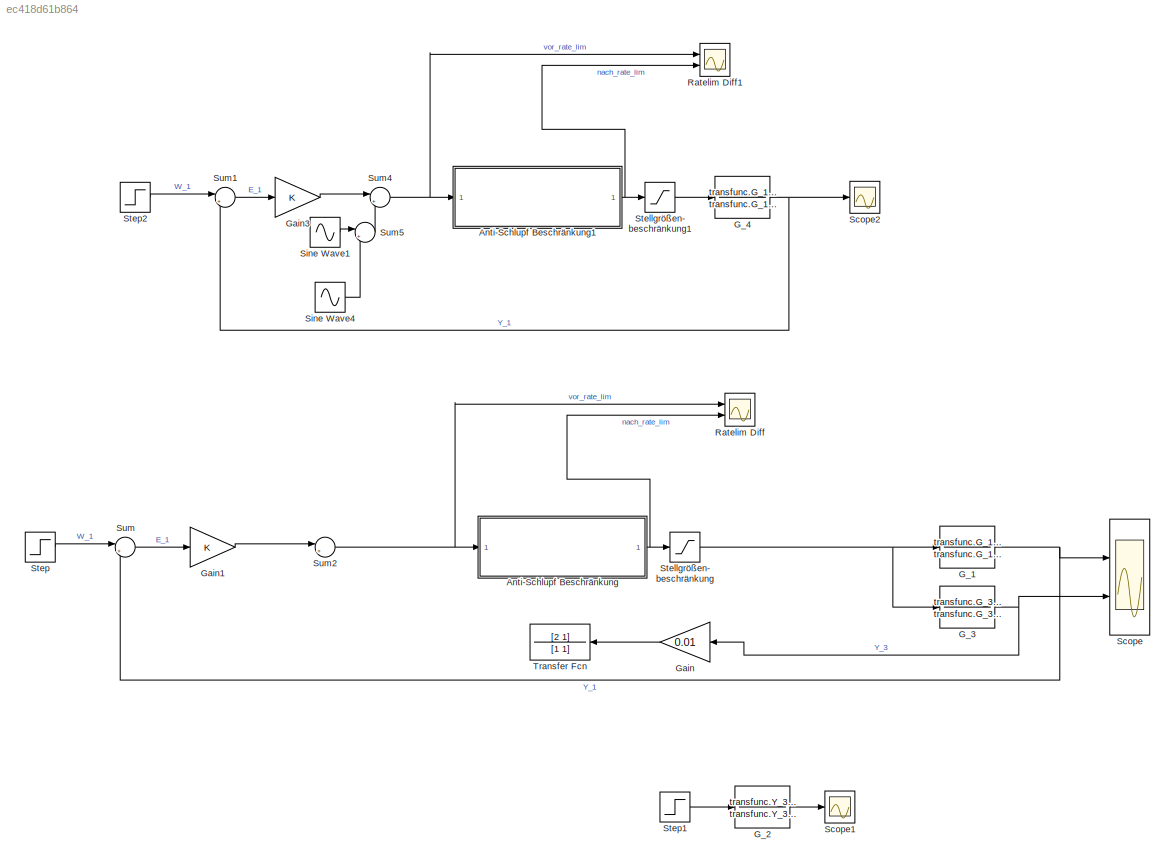
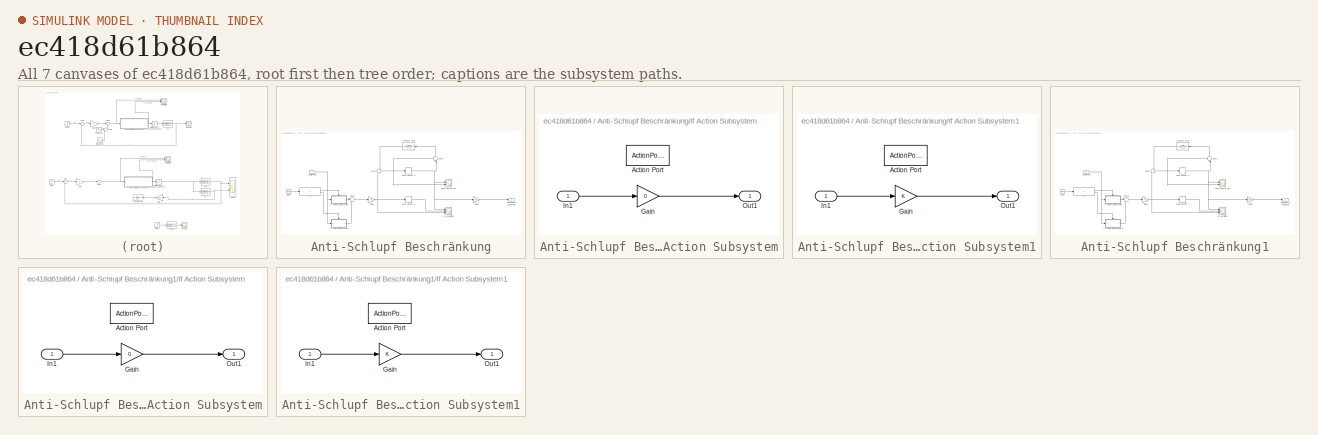
[diagram: thumbnail index - all 7 canvases of the model, root first then tree order]
MODEL slx_ec418d61b864
KIND model
CONFIG AbsTol = auto
CONFIG EnableMultiTasking = off
CONFIG FixedStep = 0.001
CONFIG MaxStep = auto
CONFIG MinStep = auto
CONFIG RelTol = 1e-3
CONFIG SampleTimeConstraint = Unconstrained
CONFIG Solver = FixedStepAuto
CONFIG SolverName = FixedStepAuto
CONFIG StartTime = 0.0
CONFIG StopTime = 20
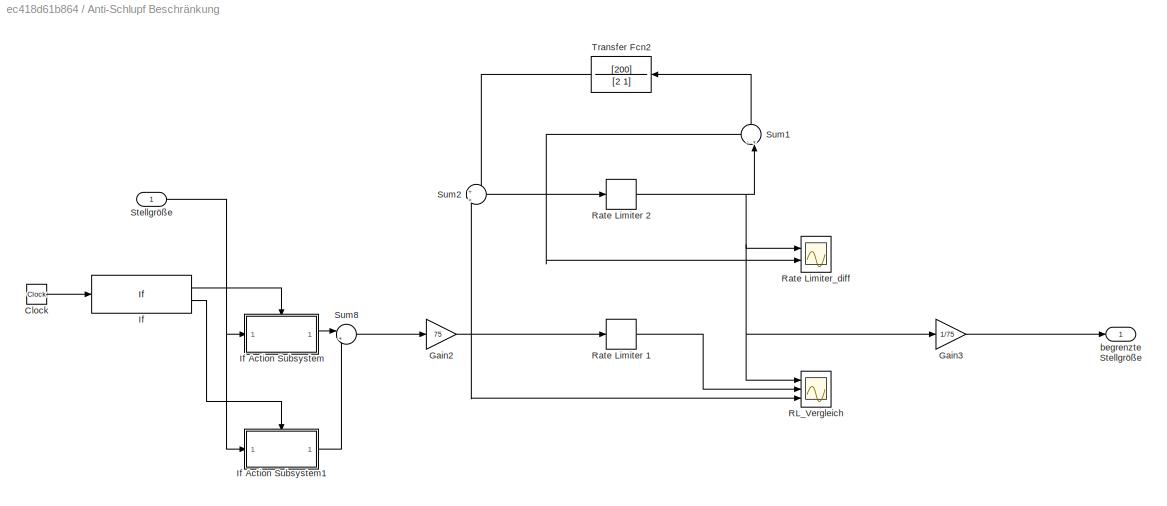
BLOCK [SubSystem] Anti-Schlupf Beschränkung
  Ports = [1, 1]
  RequestExecContextInheritance = off
  Variant = off
BLOCK [Clock] Anti-Schlupf Beschränkung/Clock
BLOCK [Gain] Anti-Schlupf Beschränkung/Gain2
  Gain = 75
  OutDataTypeStr = Inherit: Inherit via internal rule
  ParamDataTypeStr = Inherit: Inherit via internal rule
  SaturateOnIntegerOverflow = off
BLOCK [Gain] Anti-Schlupf Beschränkung/Gain3
  Gain = 1/75
  OutDataTypeStr = Inherit: Inherit via internal rule
  ParamDataTypeStr = Inherit: Inherit via internal rule
  SaturateOnIntegerOverflow = off
BLOCK [If] Anti-Schlupf Beschränkung/If
  IfExpression = u1 < 0.01
  Ports = [1, 2]
BLOCK [SubSystem] Anti-Schlupf Beschränkung/If Action Subsystem
  Ports = [1, 1, 0, 0, 0, 0, 0, 1]
  RequestExecContextInheritance = off
  TreatAsAtomicUnit = on
  Variant = off
BLOCK [ActionPort] Anti-Schlupf Beschränkung/If Action Subsystem/Action Port
  ActionType = then
BLOCK [Gain] Anti-Schlupf Beschränkung/If Action Subsystem/Gain
  Gain = 0
  OutDataTypeStr = Inherit: Inherit via internal rule
  ParamDataTypeStr = Inherit: Inherit via internal rule
  SaturateOnIntegerOverflow = off
BLOCK [Inport] Anti-Schlupf Beschränkung/If Action Subsystem/In1
  IconDisplay = Port number
BLOCK [Outport] Anti-Schlupf Beschränkung/If Action Subsystem/Out1
  IconDisplay = Port number
BLOCK [SubSystem] Anti-Schlupf Beschränkung/If Action Subsystem1
  Ports = [1, 1, 0, 0, 0, 0, 0, 1]
  RequestExecContextInheritance = off
  TreatAsAtomicUnit = on
  Variant = off
BLOCK [ActionPort] Anti-Schlupf Beschränkung/If Action Subsystem1/Action Port
  ActionType = else
BLOCK [Gain] Anti-Schlupf Beschränkung/If Action Subsystem1/Gain
  OutDataTypeStr = Inherit: Inherit via internal rule
  ParamDataTypeStr = Inherit: Inherit via internal rule
  SaturateOnIntegerOverflow = off
BLOCK [Inport] Anti-Schlupf Beschränkung/If Action Subsystem1/In1
  IconDisplay = Port number
BLOCK [Outport] Anti-Schlupf Beschränkung/If Action Subsystem1/Out1
  IconDisplay = Port number
BLOCK [Scope] Anti-Schlupf Beschränkung/RL_Vergleich
  NumInputPorts = 3
  Ports = [3]
  ScopeSpecificationString = Simulink.scopes.TimeScopeBlockCfg('CurrentConfiguration', extmgr.ConfigurationSet(extmgr.Configuration('Core','General UI',true),extmgr.Configuration('Core','Source UI',true),extmgr.Configuration('Sources','WiredSimulink',true,'DataLoggingVariableName','ScopeData2'),extmgr.Configuration('Visuals','Time Domain',true,'SerializedDisplays',{struct('MinYLimReal','-511.24002','MaxYLimReal','97.26882','Y...<+1489ch>
BLOCK [RateLimiter] Anti-Schlupf Beschränkung/Rate Limiter 1
  FallingSlewLimit = -9.57
  RisingSlewLimit = 9.57
  SampleTimeMode = inherited
BLOCK [RateLimiter] Anti-Schlupf Beschränkung/Rate Limiter 2
  FallingSlewLimit = -9.57
  RisingSlewLimit = 9.57
  SampleTimeMode = inherited
BLOCK [Scope] Anti-Schlupf Beschränkung/Rate Limiter_diff
  NumInputPorts = 2
  Ports = [2]
  ScopeSpecificationString = Simulink.scopes.TimeScopeBlockCfg('CurrentConfiguration', extmgr.ConfigurationSet(extmgr.Configuration('Core','General UI',true),extmgr.Configuration('Core','Source UI',true),extmgr.Configuration('Sources','WiredSimulink',true,'DataLoggingVariableName','ScopeData1'),extmgr.Configuration('Visuals','Time Domain',true,'SerializedDisplays',{struct('MinYLimReal','-24.99839','MaxYLimReal','29.44327','YL...<+1434ch>
BLOCK [Inport] Anti-Schlupf Beschränkung/Stellgröße
  IconDisplay = Port number
BLOCK [Sum] Anti-Schlupf Beschränkung/Sum1
  IconShape = round
  InputSameDT = off
  Inputs = -+|
  OutDataTypeStr = Inherit: Inherit via internal rule
  Ports = [2, 1]
  SaturateOnIntegerOverflow = off
BLOCK [Sum] Anti-Schlupf Beschränkung/Sum2
  IconShape = round
  InputSameDT = off
  Inputs = +|+
  OutDataTypeStr = Inherit: Inherit via internal rule
  Ports = [2, 1]
  SaturateOnIntegerOverflow = off
BLOCK [Sum] Anti-Schlupf Beschränkung/Sum8
  IconShape = round
  InputSameDT = off
  Inputs = |++
  OutDataTypeStr = Inherit: Inherit via internal rule
  Ports = [2, 1]
  SaturateOnIntegerOverflow = off
BLOCK [TransferFcn] Anti-Schlupf Beschränkung/Transfer Fcn2
  Denominator = [2 1]
  Numerator = [200]
BLOCK [Outport] Anti-Schlupf Beschränkung/begrenzte Stellgröße
  IconDisplay = Port number
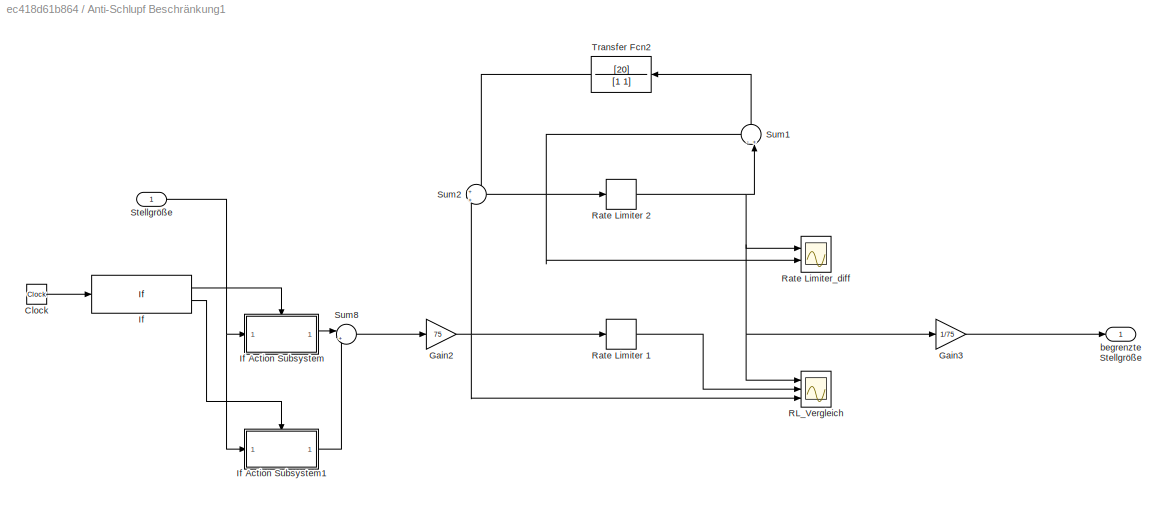
BLOCK [SubSystem] Anti-Schlupf Beschränkung1
  Commented = on
  Ports = [1, 1]
  RequestExecContextInheritance = off
  Variant = off
BLOCK [Clock] Anti-Schlupf Beschränkung1/Clock
BLOCK [Gain] Anti-Schlupf Beschränkung1/Gain2
  Gain = 75
  OutDataTypeStr = Inherit: Inherit via internal rule
  ParamDataTypeStr = Inherit: Inherit via internal rule
  SaturateOnIntegerOverflow = off
BLOCK [Gain] Anti-Schlupf Beschränkung1/Gain3
  Gain = 1/75
  OutDataTypeStr = Inherit: Inherit via internal rule
  ParamDataTypeStr = Inherit: Inherit via internal rule
  SaturateOnIntegerOverflow = off
BLOCK [If] Anti-Schlupf Beschränkung1/If
  IfExpression = u1 < 0.01
  Ports = [1, 2]
BLOCK [SubSystem] Anti-Schlupf Beschränkung1/If Action Subsystem
  Ports = [1, 1, 0, 0, 0, 0, 0, 1]
  RequestExecContextInheritance = off
  TreatAsAtomicUnit = on
  Variant = off
BLOCK [ActionPort] Anti-Schlupf Beschränkung1/If Action Subsystem/Action Port
  ActionType = then
BLOCK [Gain] Anti-Schlupf Beschränkung1/If Action Subsystem/Gain
  Gain = 0
  OutDataTypeStr = Inherit: Inherit via internal rule
  ParamDataTypeStr = Inherit: Inherit via internal rule
  SaturateOnIntegerOverflow = off
BLOCK [Inport] Anti-Schlupf Beschränkung1/If Action Subsystem/In1
  IconDisplay = Port number
BLOCK [Outport] Anti-Schlupf Beschränkung1/If Action Subsystem/Out1
  IconDisplay = Port number
BLOCK [SubSystem] Anti-Schlupf Beschränkung1/If Action Subsystem1
  Ports = [1, 1, 0, 0, 0, 0, 0, 1]
  RequestExecContextInheritance = off
  TreatAsAtomicUnit = on
  Variant = off
BLOCK [ActionPort] Anti-Schlupf Beschränkung1/If Action Subsystem1/Action Port
  ActionType = else
BLOCK [Gain] Anti-Schlupf Beschränkung1/If Action Subsystem1/Gain
  OutDataTypeStr = Inherit: Inherit via internal rule
  ParamDataTypeStr = Inherit: Inherit via internal rule
  SaturateOnIntegerOverflow = off
BLOCK [Inport] Anti-Schlupf Beschränkung1/If Action Subsystem1/In1
  IconDisplay = Port number
BLOCK [Outport] Anti-Schlupf Beschränkung1/If Action Subsystem1/Out1
  IconDisplay = Port number
BLOCK [Scope] Anti-Schlupf Beschränkung1/RL_Vergleich
  NumInputPorts = 3
  Ports = [3]
  ScopeSpecificationString = Simulink.scopes.TimeScopeBlockCfg('CurrentConfiguration', extmgr.ConfigurationSet(extmgr.Configuration('Core','General UI',true),extmgr.Configuration('Core','Source UI',true),extmgr.Configuration('Sources','WiredSimulink',true,'DataLoggingVariableName','ScopeData2'),extmgr.Configuration('Visuals','Time Domain',true,'SerializedDisplays',{struct('MinYLimReal','-511.24002','MaxYLimReal','97.26882','Y...<+1489ch>
BLOCK [RateLimiter] Anti-Schlupf Beschränkung1/Rate Limiter 1
  FallingSlewLimit = -9.57
  RisingSlewLimit = 9.57
  SampleTimeMode = inherited
BLOCK [RateLimiter] Anti-Schlupf Beschränkung1/Rate Limiter 2
  FallingSlewLimit = -9.57
  RisingSlewLimit = 9.57
  SampleTimeMode = inherited
BLOCK [Scope] Anti-Schlupf Beschränkung1/Rate Limiter_diff
  NumInputPorts = 2
  Ports = [2]
  ScopeSpecificationString = Simulink.scopes.TimeScopeBlockCfg('CurrentConfiguration', extmgr.ConfigurationSet(extmgr.Configuration('Core','General UI',true),extmgr.Configuration('Core','Source UI',true),extmgr.Configuration('Sources','WiredSimulink',true,'DataLoggingVariableName','ScopeData1'),extmgr.Configuration('Visuals','Time Domain',true,'SerializedDisplays',{struct('MinYLimReal','-24.99839','MaxYLimReal','29.44327','YL...<+1434ch>
BLOCK [Inport] Anti-Schlupf Beschränkung1/Stellgröße
  IconDisplay = Port number
BLOCK [Sum] Anti-Schlupf Beschränkung1/Sum1
  IconShape = round
  InputSameDT = off
  Inputs = -+|
  OutDataTypeStr = Inherit: Inherit via internal rule
  Ports = [2, 1]
  SaturateOnIntegerOverflow = off
BLOCK [Sum] Anti-Schlupf Beschränkung1/Sum2
  IconShape = round
  InputSameDT = off
  Inputs = +|+
  OutDataTypeStr = Inherit: Inherit via internal rule
  Ports = [2, 1]
  SaturateOnIntegerOverflow = off
BLOCK [Sum] Anti-Schlupf Beschränkung1/Sum8
  IconShape = round
  InputSameDT = off
  Inputs = |++
  OutDataTypeStr = Inherit: Inherit via internal rule
  Ports = [2, 1]
  SaturateOnIntegerOverflow = off
BLOCK [TransferFcn] Anti-Schlupf Beschränkung1/Transfer Fcn2
  Denominator = [1 1]
  Numerator = [20]
BLOCK [Outport] Anti-Schlupf Beschränkung1/begrenzte Stellgröße
  IconDisplay = Port number
BLOCK [TransferFcn] G_1
  Denominator = transfunc.G_1_denom
  Numerator = transfunc.G_1_numer
BLOCK [TransferFcn] G_2
  Commented = on
  Denominator = transfunc.Y_3_denom
  Numerator = transfunc.Y_3_numer
BLOCK [TransferFcn] G_3
  Denominator = transfunc.G_3_denom
  Numerator = transfunc.G_3_numer
BLOCK [TransferFcn] G_4
  Commented = on
  Denominator = transfunc.G_1_denom
  Numerator = transfunc.G_1_numer
BLOCK [Gain] Gain
  Gain = 0.01
  OutDataTypeStr = Inherit: Inherit via internal rule
  ParamDataTypeStr = Inherit: Inherit via internal rule
  SaturateOnIntegerOverflow = off
BLOCK [Gain] Gain1
  OutDataTypeStr = Inherit: Inherit via internal rule
  ParamDataTypeStr = Inherit: Inherit via internal rule
  SaturateOnIntegerOverflow = off
BLOCK [Gain] Gain3
  Commented = on
  OutDataTypeStr = Inherit: Inherit via internal rule
  ParamDataTypeStr = Inherit: Inherit via internal rule
  SaturateOnIntegerOverflow = off
BLOCK [Scope] Ratelim Diff
  NumInputPorts = 2
  Ports = [2]
  ScopeSpecificationString = Simulink.scopes.TimeScopeBlockCfg('CurrentConfiguration', extmgr.ConfigurationSet(extmgr.Configuration('Core','General UI',true),extmgr.Configuration('Core','Source UI',true),extmgr.Configuration('Sources','WiredSimulink',true,'DataLoggingVariableName','ScopeData1'),extmgr.Configuration('Visuals','Time Domain',true,'SerializedDisplays',{struct('MinYLimReal','-0.43901','MaxYLimReal','1.53592','YLab...<+1458ch>
BLOCK [Scope] Ratelim Diff1
  Commented = on
  NumInputPorts = 2
  Ports = [2]
  ScopeSpecificationString = Simulink.scopes.TimeScopeBlockCfg('CurrentConfiguration', extmgr.ConfigurationSet(extmgr.Configuration('Core','General UI',true),extmgr.Configuration('Core','Source UI',true),extmgr.Configuration('Sources','WiredSimulink',true,'DataLoggingVariableName','ScopeData2'),extmgr.Configuration('Visuals','Time Domain',true,'SerializedDisplays',{struct('MinYLimReal','-0.43901','MaxYLimReal','1.53592','YLab...<+1458ch>
BLOCK [Scope] Scope
  NumInputPorts = 2
  Ports = [2]
  ScopeSpecificationString = Simulink.scopes.TimeScopeBlockCfg('CurrentConfiguration', extmgr.ConfigurationSet(extmgr.Configuration('Core','General UI',true),extmgr.Configuration('Core','Source UI',true),extmgr.Configuration('Sources','WiredSimulink',true),extmgr.Configuration('Visuals','Time Domain',true,'SerializedDisplays',{struct('MinYLimReal','-0.2423','MaxYLimReal','2.18069','YLabelReal','','MinYLimMag','0.00000','MaxYL...<+2036ch>
BLOCK [Scope] Scope1
  Commented = on
  NumInputPorts = 1
  Ports = [1]
  ScopeSpecificationString = Simulink.scopes.TimeScopeBlockCfg('CurrentConfiguration', extmgr.ConfigurationSet(extmgr.Configuration('Core','General UI',true),extmgr.Configuration('Core','Source UI',true),extmgr.Configuration('Sources','WiredSimulink',true,'DataLoggingVariableName','ScopeData1'),extmgr.Configuration('Visuals','Time Domain',true,'SerializedDisplays',{struct('MinYLimReal','-13.76851','MaxYLimReal','13.76049','YL...<+1441ch>
BLOCK [Scope] Scope2
  Commented = on
  NumInputPorts = 1
  Ports = [1]
  ScopeSpecificationString = Simulink.scopes.TimeScopeBlockCfg('CurrentConfiguration', extmgr.ConfigurationSet(extmgr.Configuration('Core','General UI',true),extmgr.Configuration('Core','Source UI',true),extmgr.Configuration('Sources','WiredSimulink',true,'DataLoggingVariableName','ScopeData3'),extmgr.Configuration('Visuals','Time Domain',true,'SerializedDisplays',{struct('MinYLimReal','-0.192','MaxYLimReal','1.72799','YLabel...<+1358ch>
BLOCK [Sin] Sine Wave1
  Amplitude = 0.2
  Commented = on
  Frequency = 4.43
  Ports = [0, 1]
  SampleTime = 0
BLOCK [Sin] Sine Wave4
  Amplitude = 0.2
  Commented = on
  Frequency = 9.9
  Ports = [0, 1]
  SampleTime = 0
BLOCK [Saturate] Stellgrößen- beschränkung
  InputPortMap = u0
  LowerLimit = -1
  Ports = [1, 1]
  UpperLimit = 1
BLOCK [Saturate] Stellgrößen- beschränkung1
  Commented = on
  InputPortMap = u0
  LowerLimit = -1
  Ports = [1, 1]
  UpperLimit = 1
BLOCK [Step] Step
  SampleTime = 0
  Time = 0
BLOCK [Step] Step1
  Commented = on
  SampleTime = 0
BLOCK [Step] Step2
  Commented = on
  SampleTime = 0
  Time = 0
BLOCK [Sum] Sum
  IconShape = round
  InputSameDT = off
  Inputs = |+-
  OutDataTypeStr = Inherit: Inherit via internal rule
  Ports = [2, 1]
  SaturateOnIntegerOverflow = off
BLOCK [Sum] Sum1
  Commented = on
  IconShape = round
  InputSameDT = off
  Inputs = |+-
  OutDataTypeStr = Inherit: Inherit via internal rule
  Ports = [2, 1]
  SaturateOnIntegerOverflow = off
BLOCK [Sum] Sum2
  IconShape = round
  InputSameDT = off
  Inputs = |++
  OutDataTypeStr = Inherit: Inherit via internal rule
  Ports = [2, 1]
  SaturateOnIntegerOverflow = off
BLOCK [Sum] Sum4
  Commented = on
  IconShape = round
  InputSameDT = off
  Inputs = |++
  OutDataTypeStr = Inherit: Inherit via internal rule
  Ports = [2, 1]
  SaturateOnIntegerOverflow = off
BLOCK [Sum] Sum5
  Commented = on
  IconShape = round
  InputSameDT = off
  Inputs = |++
  OutDataTypeStr = Inherit: Inherit via internal rule
  Ports = [2, 1]
  SaturateOnIntegerOverflow = off
BLOCK [TransferFcn] Transfer Fcn
  Denominator = [1 1]
  Numerator = [2 1]
LINE Anti-Schlupf Beschränkung/Clock:1 -> Anti-Schlupf Beschränkung/If:1
NET Anti-Schlupf Beschränkung/Gain2:1 -> Anti-Schlupf Beschränkung/RL_Vergleich:3, Anti-Schlupf Beschränkung/Rate Limiter 1:1, Anti-Schlupf Beschränkung/Sum2:2
LINE Anti-Schlupf Beschränkung/Gain3:1 -> Anti-Schlupf Beschränkung/begrenzte Stellgröße:1
LINE Anti-Schlupf Beschränkung/If Action Subsystem/Gain:1 -> Anti-Schlupf Beschränkung/If Action Subsystem/Out1:1
LINE Anti-Schlupf Beschränkung/If Action Subsystem/In1:1 -> Anti-Schlupf Beschränkung/If Action Subsystem/Gain:1
LINE Anti-Schlupf Beschränkung/If Action Subsystem1/Gain:1 -> Anti-Schlupf Beschränkung/If Action Subsystem1/Out1:1
LINE Anti-Schlupf Beschränkung/If Action Subsystem1/In1:1 -> Anti-Schlupf Beschränkung/If Action Subsystem1/Gain:1
LINE Anti-Schlupf Beschränkung/If Action Subsystem1:1 -> Anti-Schlupf Beschränkung/Sum8:2
LINE Anti-Schlupf Beschränkung/If Action Subsystem:1 -> Anti-Schlupf Beschränkung/Sum8:1
LINE Anti-Schlupf Beschränkung/If:1 -> Anti-Schlupf Beschränkung/If Action Subsystem:ifaction
LINE Anti-Schlupf Beschränkung/If:2 -> Anti-Schlupf Beschränkung/If Action Subsystem1:ifaction
LINE Anti-Schlupf Beschränkung/Rate Limiter 1:1 -> Anti-Schlupf Beschränkung/RL_Vergleich:2
NET Anti-Schlupf Beschränkung/Rate Limiter 2:1 -> Anti-Schlupf Beschränkung/Gain3:1, Anti-Schlupf Beschränkung/RL_Vergleich:1, Anti-Schlupf Beschränkung/Rate Limiter_diff:1, Anti-Schlupf Beschränkung/Sum1:2
NET Anti-Schlupf Beschränkung/Stellgröße:1 -> Anti-Schlupf Beschränkung/If Action Subsystem1:1, Anti-Schlupf Beschränkung/If Action Subsystem:1
LINE Anti-Schlupf Beschränkung/Sum1:1 -> Anti-Schlupf Beschränkung/Transfer Fcn2:1
NET Anti-Schlupf Beschränkung/Sum2:1 -> Anti-Schlupf Beschränkung/Rate Limiter 2:1, Anti-Schlupf Beschränkung/Rate Limiter_diff:2, Anti-Schlupf Beschränkung/Sum1:1
LINE Anti-Schlupf Beschränkung/Sum8:1 -> Anti-Schlupf Beschränkung/Gain2:1
LINE Anti-Schlupf Beschränkung/Transfer Fcn2:1 -> Anti-Schlupf Beschränkung/Sum2:1
LINE Anti-Schlupf Beschränkung1/Clock:1 -> Anti-Schlupf Beschränkung1/If:1
NET Anti-Schlupf Beschränkung1/Gain2:1 -> Anti-Schlupf Beschränkung1/RL_Vergleich:3, Anti-Schlupf Beschränkung1/Rate Limiter 1:1, Anti-Schlupf Beschränkung1/Sum2:2
LINE Anti-Schlupf Beschränkung1/Gain3:1 -> Anti-Schlupf Beschränkung1/begrenzte Stellgröße:1
LINE Anti-Schlupf Beschränkung1/If Action Subsystem/Gain:1 -> Anti-Schlupf Beschränkung1/If Action Subsystem/Out1:1
LINE Anti-Schlupf Beschränkung1/If Action Subsystem/In1:1 -> Anti-Schlupf Beschränkung1/If Action Subsystem/Gain:1
LINE Anti-Schlupf Beschränkung1/If Action Subsystem1/Gain:1 -> Anti-Schlupf Beschränkung1/If Action Subsystem1/Out1:1
LINE Anti-Schlupf Beschränkung1/If Action Subsystem1/In1:1 -> Anti-Schlupf Beschränkung1/If Action Subsystem1/Gain:1
LINE Anti-Schlupf Beschränkung1/If Action Subsystem1:1 -> Anti-Schlupf Beschränkung1/Sum8:2
LINE Anti-Schlupf Beschränkung1/If Action Subsystem:1 -> Anti-Schlupf Beschränkung1/Sum8:1
LINE Anti-Schlupf Beschränkung1/If:1 -> Anti-Schlupf Beschränkung1/If Action Subsystem:ifaction
LINE Anti-Schlupf Beschränkung1/If:2 -> Anti-Schlupf Beschränkung1/If Action Subsystem1:ifaction
LINE Anti-Schlupf Beschränkung1/Rate Limiter 1:1 -> Anti-Schlupf Beschränkung1/RL_Vergleich:2
NET Anti-Schlupf Beschränkung1/Rate Limiter 2:1 -> Anti-Schlupf Beschränkung1/Gain3:1, Anti-Schlupf Beschränkung1/RL_Vergleich:1, Anti-Schlupf Beschränkung1/Rate Limiter_diff:1, Anti-Schlupf Beschränkung1/Sum1:2
NET Anti-Schlupf Beschränkung1/Stellgröße:1 -> Anti-Schlupf Beschränkung1/If Action Subsystem1:1, Anti-Schlupf Beschränkung1/If Action Subsystem:1
LINE Anti-Schlupf Beschränkung1/Sum1:1 -> Anti-Schlupf Beschränkung1/Transfer Fcn2:1
NET Anti-Schlupf Beschränkung1/Sum2:1 -> Anti-Schlupf Beschränkung1/Rate Limiter 2:1, Anti-Schlupf Beschränkung1/Rate Limiter_diff:2, Anti-Schlupf Beschränkung1/Sum1:1
LINE Anti-Schlupf Beschränkung1/Sum8:1 -> Anti-Schlupf Beschränkung1/Gain2:1
LINE Anti-Schlupf Beschränkung1/Transfer Fcn2:1 -> Anti-Schlupf Beschränkung1/Sum2:1
NET Anti-Schlupf Beschränkung1:1 -> Ratelim Diff1:2, Stellgrößen- beschränkung1:1
NET Anti-Schlupf Beschränkung:1 -> Ratelim Diff:2, Stellgrößen- beschränkung:1
NET G_1:1 -> Scope:1, Sum:2
LINE G_2:1 -> Scope1:1
NET G_3:1 -> Gain:1, Scope:2
NET G_4:1 -> Scope2:1, Sum1:2
LINE Gain1:1 -> Sum2:1
LINE Gain3:1 -> Sum4:1
LINE Gain:1 -> Transfer Fcn:1
LINE Sine Wave1:1 -> Sum5:1
LINE Sine Wave4:1 -> Sum5:2
LINE Stellgrößen- beschränkung1:1 -> G_4:1
NET Stellgrößen- beschränkung:1 -> G_1:1, G_3:1
LINE Step1:1 -> G_2:1
LINE Step2:1 -> Sum1:1
LINE Step:1 -> Sum:1
LINE Sum1:1 -> Gain3:1
NET Sum2:1 -> Anti-Schlupf Beschränkung:1, Ratelim Diff:1
NET Sum4:1 -> Anti-Schlupf Beschränkung1:1, Ratelim Diff1:1
LINE Sum5:1 -> Sum4:2
LINE Sum:1 -> Gain1:1
note: NET lines group one-source signal fan-out (src -> all destinations, sorted); 1:1 wires keep LINE
